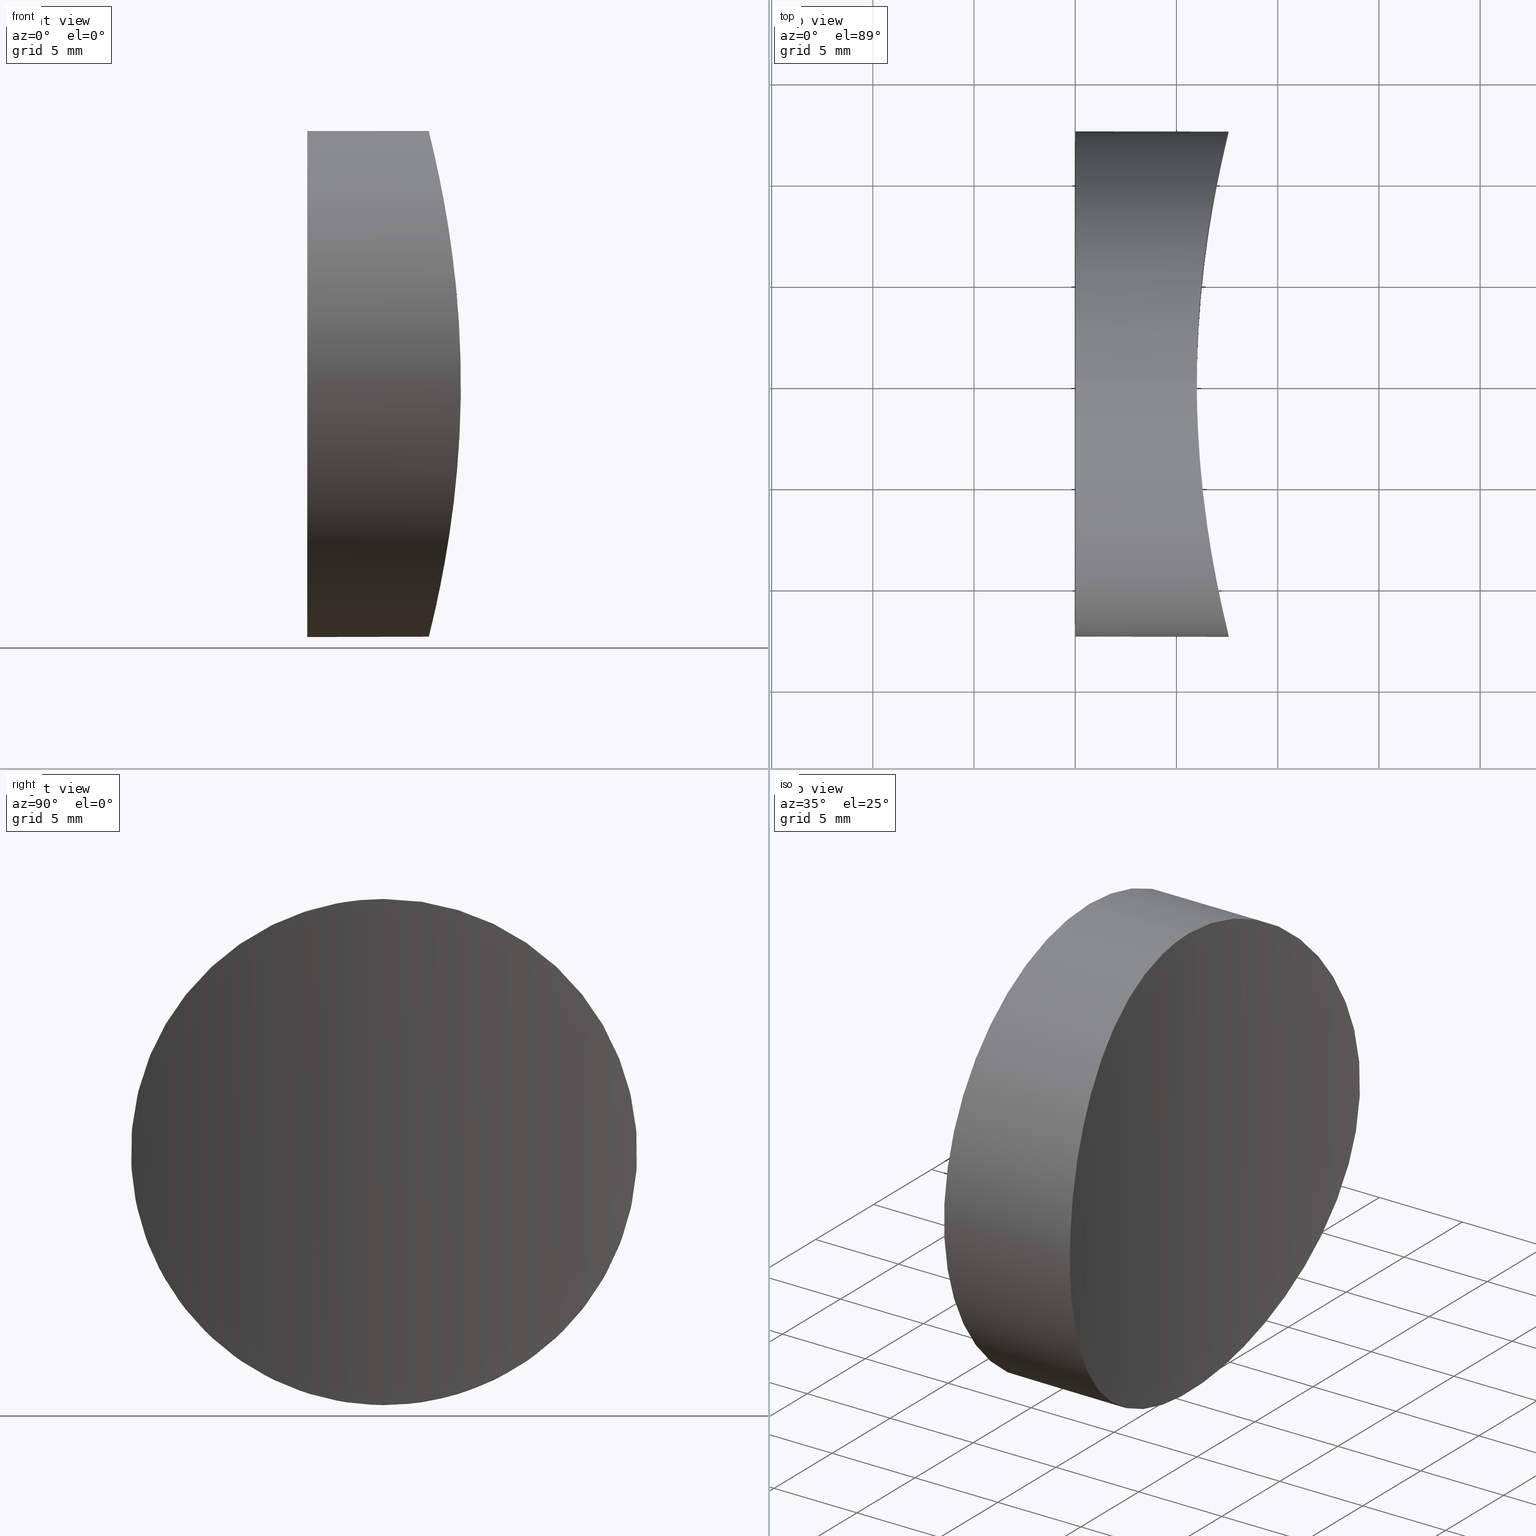
[diagram: canonical four-view strip — front | top / right | iso, engineering-drawing reading convention]
A machine part, canonical four-view strip (front | top / right | iso — engineering-drawing reading convention). The complete STEP part file that produces these views, byte-faithful:
ISO-10303-21;
HEADER;
FILE_DESCRIPTION (( 'STEP AP203' ),
    '1' );
FILE_NAME ('280008.STEP',
    '2022-07-05T09:58:47',
    ( '' ),
    ( '' ),
    'SwSTEP 2.0',
    'SolidWorks 2020',
    '' );
FILE_SCHEMA (( 'CONFIG_CONTROL_DESIGN' ));
ENDSEC;

DATA;
#1 = CARTESIAN_POINT ( 'NONE',  ( 6.079946777061936203, -2.854977740523757301, 12.17652724102993567 ) ) ;
#2 = PERSON_AND_ORGANIZATION ( #167, #139 ) ;
#3 = CARTESIAN_POINT ( 'NONE',  ( 6.161091045138295641, 4.029741608431925748, 11.83977773372679465 ) ) ;
#4 = DATE_TIME_ROLE ( 'classification_date' ) ;
#5 = CC_DESIGN_DATE_AND_TIME_ASSIGNMENT ( #165, #4, ( #186 ) ) ;
#6 = DIRECTION ( 'NONE',  ( 1.000000000000000000, 0.000000000000000000, 0.000000000000000000 ) ) ;
#7 = PERSON_AND_ORGANIZATION ( #167, #139 ) ;
#8 = CARTESIAN_POINT ( 'NONE',  ( 7.186042843819639536, 10.82758093107204544, 6.259370238709979439 ) ) ;
#9 = CARTESIAN_POINT ( 'NONE',  ( 7.587574092879447285, 12.49948071211161960, 0.8267259294094936317 ) ) ;
#10 = LOCAL_TIME ( 17, 58, 47.00000000000000000, #161 ) ;
#11 = CARTESIAN_POINT ( 'NONE',  ( 6.305736556333572551, -5.532896079705575509, -11.21630121569424610 ) ) ;
#12 = APPLICATION_CONTEXT ( 'configuration controlled 3d designs of mechanical parts and assemblies' ) ;
#13 = CARTESIAN_POINT ( 'NONE',  ( 7.587819625756414332, -12.50043165702883741, 0.8180508003151732987 ) ) ;
#14 = CARTESIAN_POINT ( 'NONE',  ( 7.387537047072225249, -11.69849908077583045, -4.423190251143132912 ) ) ;
#15 = CARTESIAN_POINT ( 'NONE',  ( 6.839604805064634974, 9.129185757555623226, -8.548425080368714291 ) ) ;
#16 = CARTESIAN_POINT ( 'NONE',  ( 7.582240441760501604, -12.47887570085656783, -0.8345090582901608656 ) ) ;
#17 = PERSON_AND_ORGANIZATION ( #167, #139 ) ;
#18 = CARTESIAN_POINT ( 'NONE',  ( 0.000000000000000000, 0.000000000000000000, -12.50000000000000000 ) ) ;
#19 = PLANE ( 'NONE',  #71 ) ;
#20 = EDGE_CURVE ( 'NONE', #225, #225, #53, .T. ) ;
#21 = APPROVAL_ROLE ( '' ) ;
#22 = CARTESIAN_POINT ( 'NONE',  ( 10.00000000000000000, 0.000000000000000000, 0.000000000000000000 ) ) ;
#23 = APPROVAL_PERSON_ORGANIZATION ( #216, #195, #94 ) ;
#24 = PERSON_AND_ORGANIZATION ( #167, #139 ) ;
#25 = EDGE_LOOP ( 'NONE', ( #96 ) ) ;
#26 = ORIENTED_EDGE ( 'NONE', *, *, #20, .T. ) ;
#27 = CARTESIAN_POINT ( 'NONE',  ( 6.265913156506872639, -5.163687000787597015, -11.39089312129080334 ) ) ;
#28 = AXIS2_PLACEMENT_3D ( 'NONE', #56, #192, #38 ) ;
#29 = CARTESIAN_POINT ( 'NONE',  ( 6.005100018772039583, 0.8235847107171863080, -12.47964648489684159 ) ) ;
#30 = CARTESIAN_POINT ( 'NONE',  ( 6.307152972755488918, 5.545641650615057650, -11.21003846460155096 ) ) ;
#31 = PRODUCT ( '280008', '280008', '', ( #36 ) ) ;
#32 = CARTESIAN_POINT ( 'NONE',  ( 6.534175713605126390, -7.297294148111635792, 10.15714168463132516 ) ) ;
#33 = AXIS2_PLACEMENT_3D ( 'NONE', #22, #215, #127 ) ;
#34 = CARTESIAN_POINT ( 'NONE',  ( 6.157273637023417123, -4.034211087475103596, -11.85915591738234554 ) ) ;
#35 = FACE_OUTER_BOUND ( 'NONE', #219, .T. ) ;
#36 = MECHANICAL_CONTEXT ( 'NONE', #44, 'mechanical' ) ;
#37 = CC_DESIGN_APPROVAL ( #90, ( #177 ) ) ;
#38 = DIRECTION ( 'NONE',  ( 1.000000000000000000, 0.000000000000000000, 0.000000000000000000 ) ) ;
#39 = CYLINDRICAL_SURFACE ( 'NONE', #33, 12.50000000000000000 ) ;
#40 = SHAPE_DEFINITION_REPRESENTATION ( #147, #222 ) ;
#41 = UNCERTAINTY_MEASURE_WITH_UNIT (LENGTH_MEASURE( 1.000000000000000082E-05 ), #125, 'distance_accuracy_value', 'NONE');
#42 = CARTESIAN_POINT ( 'NONE',  ( 6.532835311999781958, 7.288130936574965801, 10.16363825462673098 ) ) ;
#43 = CALENDAR_DATE ( 2022, 5, 7 ) ;
#45 = CARTESIAN_POINT ( 'NONE',  ( 6.194299334846008698, 4.420004972765438467, 11.69962345129866854 ) ) ;
#44 = APPLICATION_CONTEXT ( 'configuration controlled 3d designs of mechanical parts and assemblies' ) ;
#46 = CARTESIAN_POINT ( 'NONE',  ( 6.303643344953151484, 5.554204356984177693, 11.22814968757779219 ) ) ;
#47 = CARTESIAN_POINT ( 'NONE',  ( 7.566654253665491936, 12.41928640651521576, 1.639928603449063216 ) ) ;
#48 = CARTESIAN_POINT ( 'NONE',  ( 6.891622903190479654, -9.404082368777242351, 8.244961935644763429 ) ) ;
#49 = CARTESIAN_POINT ( 'NONE',  ( 6.682804053279611800, -8.255755907675823124, -9.421080396013119085 ) ) ;
#50 = CARTESIAN_POINT ( 'NONE',  ( 6.390626315220874432, -6.275598733998793755, 10.84153941434476565 ) ) ;
#51 = CC_DESIGN_PERSON_AND_ORGANIZATION_ASSIGNMENT ( #24, #181, ( #75 ) ) ;
#52 = CARTESIAN_POINT ( 'NONE',  ( 7.186673926548846403, -10.83848137812318058, -6.279902066514462255 ) ) ;
#53 = CIRCLE ( 'NONE', #140, 12.50000000000000000 ) ;
#54 = CARTESIAN_POINT ( 'NONE',  ( 6.890422140341053492, -9.397849109412424795, -8.252158447667394370 ) ) ;
#55 = CLOSED_SHELL ( 'NONE', ( #128, #190, #107 ) ) ;
#56 = CARTESIAN_POINT ( 'NONE',  ( 0.000000000000000000, 0.000000000000000000, 0.000000000000000000 ) ) ;
#57 = CARTESIAN_POINT ( 'NONE',  ( 55.99999999999999289, 0.000000000000000000, -12.50000000000000000 ) ) ;
#58 = PERSON_AND_ORGANIZATION_ROLE ( 'creator' ) ;
#59 = APPROVAL_STATUS ( 'not_yet_approved' ) ;
#60 = EDGE_LOOP ( 'NONE', ( #80 ) ) ;
#61 = CARTESIAN_POINT ( 'NONE',  ( 6.020605476757367569, 1.644172766396203356, 12.41828766070498524 ) ) ;
#62 = PERSON_AND_ORGANIZATION_ROLE ( 'classification_officer' ) ;
#63 = DIRECTION ( 'NONE',  ( 0.000000000000000000, 0.000000000000000000, -1.000000000000000000 ) ) ;
#64 = EDGE_CURVE ( 'NONE', #113, #113, #212, .T. ) ;
#65 = PERSON_AND_ORGANIZATION ( #167, #139 ) ;
#66 = CARTESIAN_POINT ( 'NONE',  ( 7.480053143783346847, 12.07600576264278658, 3.253931233787182187 ) ) ;
#67 = CARTESIAN_POINT ( 'NONE',  ( 6.993880496308586103, 9.930680218612506494, 7.635849185167876918 ) ) ;
#68 = CARTESIAN_POINT ( 'NONE',  ( 7.426165505111820941, 11.86116257939136709, -4.029576029921420499 ) ) ;
#69 = CC_DESIGN_DATE_AND_TIME_ASSIGNMENT ( #77, #97, ( #177 ) ) ;
#70 = CARTESIAN_POINT ( 'NONE',  ( 6.685571399684350880, -8.257648748514874626, 9.392943772260853308 ) ) ;
#71 = AXIS2_PLACEMENT_3D ( 'NONE', #146, #92, #175 ) ;
#72 = CARTESIAN_POINT ( 'NONE',  ( 6.437762412349707475, -6.610746524278337866, -10.61671459154143093 ) ) ;
#73 = CARTESIAN_POINT ( 'NONE',  ( 7.185683537567477686, 10.82597122978654625, -6.262221030724949067 ) ) ;
#74 = CARTESIAN_POINT ( 'NONE',  ( 7.272887721713696685, 11.21194335438585732, -5.541605500562336140 ) ) ;
#75 = PRODUCT_DEFINITION_FORMATION_WITH_SPECIFIED_SOURCE ( '�κ�', '', #31, .NOT_KNOWN. ) ;
#76 = DATE_AND_TIME ( #228, #10 ) ;
#77 = DATE_AND_TIME ( #160, #169 ) ;
#78 = COORDINATED_UNIVERSAL_TIME_OFFSET ( 8, 0, .AHEAD. ) ;
#79 = CARTESIAN_POINT ( 'NONE',  ( 6.736217294784413667, 8.553637334125355096, 9.124145734398901197 ) ) ;
#80 = ORIENTED_EDGE ( 'NONE', *, *, #64, .T. ) ;
#81 =( GEOMETRIC_REPRESENTATION_CONTEXT ( 3 ) GLOBAL_UNCERTAINTY_ASSIGNED_CONTEXT ( ( #41 ) ) GLOBAL_UNIT_ASSIGNED_CONTEXT ( ( #125, #210, #91 ) ) REPRESENTATION_CONTEXT ( 'NONE', 'WORKASPACE' ) );
#82 = CALENDAR_DATE ( 2022, 5, 7 ) ;
#83 = CARTESIAN_POINT ( 'NONE',  ( 7.546217856674247493, 12.33846919857784208, -2.044443707445026348 ) ) ;
#84 = CARTESIAN_POINT ( 'NONE',  ( 7.480182015703367604, -12.07652015088924990, -3.251920623330047722 ) ) ;
#85 = CARTESIAN_POINT ( 'NONE',  ( 6.840034300545005941, -9.131405715681983892, 8.545872716771263811 ) ) ;
#86 = CARTESIAN_POINT ( 'NONE',  ( 7.566857184471438735, -12.42005302500203001, 1.631649901699227634 ) ) ;
#87 = CARTESIAN_POINT ( 'NONE',  ( 6.019873447586347126, -1.627421349341951373, -12.42125653720139589 ) ) ;
#88 = CARTESIAN_POINT ( 'NONE',  ( 7.505167992045942427, -12.17612848804832382, -2.856274480234908708 ) ) ;
#89 = FACE_OUTER_BOUND ( 'NONE', #25, .T. ) ;
#90 = APPROVAL ( #158, 'δָ��' ) ;
#91 =( NAMED_UNIT ( * ) SI_UNIT ( $, .STERADIAN. ) SOLID_ANGLE_UNIT ( ) );
#92 = DIRECTION ( 'NONE',  ( 1.000000000000000000, 0.000000000000000000, 0.000000000000000000 ) ) ;
#93 = CARTESIAN_POINT ( 'NONE',  ( 6.020615312958388365, -1.646679393241170075, 12.41826482152781885 ) ) ;
#94 = APPROVAL_ROLE ( '' ) ;
#95 = CARTESIAN_POINT ( 'NONE',  ( 5.999999999999976907, 0.8293366101144191704, 12.50000000000000178 ) ) ;
#96 = ORIENTED_EDGE ( 'NONE', *, *, #64, .F. ) ;
#97 = DATE_TIME_ROLE ( 'creation_date' ) ;
#98 = CARTESIAN_POINT ( 'NONE',  ( 7.313555479837529738, 11.38665288413018040, 5.172968375463545598 ) ) ;
#99 = COORDINATED_UNIVERSAL_TIME_OFFSET ( 8, 0, .AHEAD. ) ;
#100 = CARTESIAN_POINT ( 'NONE',  ( 6.582883460492674921, 7.619143983639335538, 9.917986195790216897 ) ) ;
#101 = DATE_AND_TIME ( #82, #197 ) ;
#102 = ORIENTED_EDGE ( 'NONE', *, *, #20, .F. ) ;
#103 = CARTESIAN_POINT ( 'NONE',  ( 7.043609333828007024, 10.16489498012156822, -7.286279739197849104 ) ) ;
#104 = LOCAL_TIME ( 17, 58, 47.00000000000000000, #78 ) ;
#105 = CARTESIAN_POINT ( 'NONE',  ( 6.992780797638283197, -9.917795697071868588, -7.619384190328960749 ) ) ;
#106 = CARTESIAN_POINT ( 'NONE',  ( 6.099250957845141485, -3.252198560275754602, -12.09790555161523429 ) ) ;
#107 = ADVANCED_FACE ( 'NONE', ( #89 ), #193, .F. ) ;
#108 = CARTESIAN_POINT ( 'NONE',  ( 7.189186427808258451, -10.84993757020427196, 6.261057857521440617 ) ) ;
#109 = CARTESIAN_POINT ( 'NONE',  ( 7.274957686200933082, -11.22390270312588534, -5.563450284998139317 ) ) ;
#110 = APPLICATION_PROTOCOL_DEFINITION ( 'international standard', 'config_control_design', 1994, #44 ) ;
#111 = CARTESIAN_POINT ( 'NONE',  ( 6.104593988542463379, -3.256504468693372178, 12.07539697410158475 ) ) ;
#112 = APPROVAL_PERSON_ORGANIZATION ( #17, #90, #21 ) ;
#113 = VERTEX_POINT ( 'NONE', #196 ) ;
#114 = FACE_OUTER_BOUND ( 'NONE', #132, .T. ) ;
#115 = CALENDAR_DATE ( 2022, 5, 7 ) ;
#116 = CARTESIAN_POINT ( 'NONE',  ( 0.000000000000000000, 0.000000000000000000, 0.000000000000000000 ) ) ;
#117 = COORDINATED_UNIVERSAL_TIME_OFFSET ( 8, 0, .AHEAD. ) ;
#118 = CARTESIAN_POINT ( 'NONE',  ( 7.421454888905754999, -11.83807548013994548, -4.034513058819213072 ) ) ;
#119 = CARTESIAN_POINT ( 'NONE',  ( 6.000043523848350269, 0.4141118134099563419, -12.49982590459195819 ) ) ;
#120 = CARTESIAN_POINT ( 'NONE',  ( 6.304212106178434638, -5.558767228273519656, 11.22560698622802278 ) ) ;
#121 = CARTESIAN_POINT ( 'NONE',  ( 6.737009812873353987, -8.558188811836586751, 9.119863765243435338 ) ) ;
#122 = APPROVAL ( #59, 'δָ��' ) ;
#123 = CARTESIAN_POINT ( 'NONE',  ( 7.042704299791986422, -10.16053974730886367, -7.292351759246850307 ) ) ;
#124 = DIRECTION ( 'NONE',  ( -0.000000000000000000, -0.000000000000000000, 1.000000000000000000 ) ) ;
#125 =( LENGTH_UNIT ( ) NAMED_UNIT ( * ) SI_UNIT ( .MILLI., .METRE. ) );
#126 = COORDINATED_UNIVERSAL_TIME_OFFSET ( 8, 0, .AHEAD. ) ;
#127 = DIRECTION ( 'NONE',  ( 0.000000000000000000, 0.000000000000000000, 1.000000000000000000 ) ) ;
#128 = ADVANCED_FACE ( 'NONE', ( #227, #35 ), #39, .T. ) ;
#129 = PERSON_AND_ORGANIZATION_ROLE ( 'design_owner' ) ;
#130 = CARTESIAN_POINT ( 'NONE',  ( 7.139433422667287310, 10.61600552682815568, 6.612040324294527593 ) ) ;
#131 = PERSON_AND_ORGANIZATION_ROLE ( 'creator' ) ;
#132 = EDGE_LOOP ( 'NONE', ( #102 ) ) ;
#133 = DATE_AND_TIME ( #43, #104 ) ;
#134 = CARTESIAN_POINT ( 'NONE',  ( 7.505499503868519717, 12.17745192511405961, 2.851170773454629437 ) ) ;
#135 = CC_DESIGN_SECURITY_CLASSIFICATION ( #186, ( #75 ) ) ;
#136 = CARTESIAN_POINT ( 'NONE',  ( 7.582647205622541797, 12.48045290285075559, -0.8123653850534494625 ) ) ;
#137 = CARTESIAN_POINT ( 'NONE',  ( 7.561253574387988508, -12.39716193780578202, -1.652004846729108856 ) ) ;
#138 = CARTESIAN_POINT ( 'NONE',  ( 6.581414756451399839, 7.633390995928920120, -9.931886804804646474 ) ) ;
#139 = ORGANIZATION ( 'δָ��', 'δָ��', '' ) ;
#140 = AXIS2_PLACEMENT_3D ( 'NONE', #116, #6, #63 ) ;
#141 = CARTESIAN_POINT ( 'NONE',  ( 6.993812786226046185, 9.922854719828210435, -7.612694288586244973 ) ) ;
#142 = CARTESIAN_POINT ( 'NONE',  ( 6.162340162931686294, -4.045247133053861077, 11.83452614468704311 ) ) ;
#143 = CARTESIAN_POINT ( 'NONE',  ( 7.277167575568991964, -11.23338405625964143, 5.543226579450369229 ) ) ;
#144 = AXIS2_PLACEMENT_3D ( 'NONE', #57, #124, #178 ) ;
#145 = PRODUCT_RELATED_PRODUCT_CATEGORY ( 'detail', '', ( #31 ) ) ;
#146 = CARTESIAN_POINT ( 'NONE',  ( 0.000000000000000000, 0.000000000000000000, 0.000000000000000000 ) ) ;
#147 = PRODUCT_DEFINITION_SHAPE ( 'NONE', 'NONE',  #177 ) ;
#148 = APPROVAL_STATUS ( 'not_yet_approved' ) ;
#149 = CARTESIAN_POINT ( 'NONE',  ( 7.273006974817552539, 11.21245168498610489, 5.540501043769901379 ) ) ;
#150 = CARTESIAN_POINT ( 'NONE',  ( 5.999999999999977796, 7.589415207398531038E-16, 12.50000000000000355 ) ) ;
#151 = MANIFOLD_SOLID_BREP ( '�г�-����1', #55 ) ;
#152 = CARTESIAN_POINT ( 'NONE',  ( 7.387636556025475087, 11.69888303683122643, 4.421719281881046903 ) ) ;
#153 = CARTESIAN_POINT ( 'NONE',  ( 6.891951690821399801, 9.405797270070179295, -8.243005388608629858 ) ) ;
#154 = CARTESIAN_POINT ( 'NONE',  ( 6.040629464330187659, 2.055146499738520927, -12.33672660645350305 ) ) ;
#155 = CARTESIAN_POINT ( 'NONE',  ( 6.993492489709584703, -9.921274511122165407, 7.614753744799346080 ) ) ;
#156 = CARTESIAN_POINT ( 'NONE',  ( 6.100039157082803420, 3.262396925311849216, -12.09465039977496303 ) ) ;
#157 = CARTESIAN_POINT ( 'NONE',  ( 7.425618115602480529, -11.85886762567691299, 4.035286471023519006 ) ) ;
#158 = APPROVAL_STATUS ( 'not_yet_approved' ) ;
#159 = CARTESIAN_POINT ( 'NONE',  ( 5.999999999999977796, 7.589415207398531038E-16, 12.50000000000000355 ) ) ;
#160 = CALENDAR_DATE ( 2022, 5, 7 ) ;
#161 = COORDINATED_UNIVERSAL_TIME_OFFSET ( 8, 0, .AHEAD. ) ;
#162 = CC_DESIGN_PERSON_AND_ORGANIZATION_ASSIGNMENT ( #174, #129, ( #31 ) ) ;
#163 = CARTESIAN_POINT ( 'NONE',  ( 5.999999999999979572, -0.8293366101144146185, 12.50000000000000355 ) ) ;
#164 = CARTESIAN_POINT ( 'NONE',  ( 7.421170797734117031, 11.83691308773319584, 4.038003492698865493 ) ) ;
#165 = DATE_AND_TIME ( #115, #206 ) ;
#166 = CARTESIAN_POINT ( 'NONE',  ( 6.890862673855239429, 9.414490074540021070, 8.262951333607043480 ) ) ;
#167 = PERSON ( 'δָ��', 'δָ��', 'δָ��', ('δָ��'), ('δָ��'), ('δָ��') ) ;
#168 = CARTESIAN_POINT ( 'NONE',  ( 6.157859234404973847, 4.041699135237720952, -11.85672567249747900 ) ) ;
#169 = LOCAL_TIME ( 17, 58, 47.00000000000000000, #126 ) ;
#170 = CARTESIAN_POINT ( 'NONE',  ( 7.587651777139506670, -12.49978158203509970, -0.4188795559613978092 ) ) ;
#171 = CARTESIAN_POINT ( 'NONE',  ( 7.486212201423399826, -12.10121620201574011, 3.237370071160983187 ) ) ;
#172 = CARTESIAN_POINT ( 'NONE',  ( 6.195230758229563151, -4.430323650192627305, 11.69565169972963226 ) ) ;
#173 = CARTESIAN_POINT ( 'NONE',  ( 7.545703338198555876, -12.33644889939095535, -2.056316468012298504 ) ) ;
#174 = PERSON_AND_ORGANIZATION ( #167, #139 ) ;
#175 = DIRECTION ( 'NONE',  ( 0.000000000000000000, 0.000000000000000000, -1.000000000000000000 ) ) ;
#176 = APPROVAL_DATE_TIME ( #76, #90 ) ;
#177 = PRODUCT_DEFINITION ( 'δ֪', '', #75, #209 ) ;
#178 = DIRECTION ( 'NONE',  ( 1.000000000000000000, 0.000000000000000000, 0.000000000000000000 ) ) ;
#179 = APPROVAL_ROLE ( '' ) ;
#180 = CARTESIAN_POINT ( 'NONE',  ( 6.684639176428601282, 8.252148142370892003, 9.397864452080449738 ) ) ;
#181 = PERSON_AND_ORGANIZATION_ROLE ( 'design_supplier' ) ;
#182 = CARTESIAN_POINT ( 'NONE',  ( 6.390075651894231434, 6.270912648793841804, 10.84394923584066461 ) ) ;
#183 = APPROVAL_DATE_TIME ( #101, #122 ) ;
#184 = CARTESIAN_POINT ( 'NONE',  ( 5.999913791463685087, -0.8123570540043763000, -12.50034483417416453 ) ) ;
#185 = CARTESIAN_POINT ( 'NONE',  ( 6.393397947848990626, 6.270424214491971071, -10.82131617989214512 ) ) ;
#186 = SECURITY_CLASSIFICATION ( '', '', #218 ) ;
#187 = CC_DESIGN_PERSON_AND_ORGANIZATION_ASSIGNMENT ( #65, #62, ( #186 ) ) ;
#188 = CARTESIAN_POINT ( 'NONE',  ( 7.139543577572755595, 10.61645304269938528, -6.611042821439353290 ) ) ;
#189 = CARTESIAN_POINT ( 'NONE',  ( 6.025346065871789669, 1.643861330173123303, -12.39828972442920119 ) ) ;
#190 = ADVANCED_FACE ( 'NONE', ( #114 ), #19, .F. ) ;
#191 = CARTESIAN_POINT ( 'NONE',  ( 6.439039493289830496, 6.620234138228664023, -10.61073787985911743 ) ) ;
#192 = DIRECTION ( 'NONE',  ( 0.000000000000000000, 0.000000000000000000, 1.000000000000000000 ) ) ;
#193 = CYLINDRICAL_SURFACE ( 'NONE', #144, 50.00000000000001421 ) ;
#194 = APPROVAL_PERSON_ORGANIZATION ( #7, #122, #179 ) ;
#195 = APPROVAL ( #148, 'δָ��' ) ;
#196 = CARTESIAN_POINT ( 'NONE',  ( 5.999999999999977796, 0.000000000000000000, 12.50000000000000000 ) ) ;
#197 = LOCAL_TIME ( 17, 58, 47.00000000000000000, #117 ) ;
#198 = CARTESIAN_POINT ( 'NONE',  ( 7.561794044490353528, 12.39927256282063439, -1.636973454883255741 ) ) ;
#199 = CARTESIAN_POINT ( 'NONE',  ( 6.103705024896003195, 3.242747446091564623, 12.07906218278748689 ) ) ;
#200 = APPROVAL_DATE_TIME ( #133, #195 ) ;
#201 = CARTESIAN_POINT ( 'NONE',  ( 6.079435908690593138, 2.845711871288983730, 12.17861720693482575 ) ) ;
#202 = CARTESIAN_POINT ( 'NONE',  ( 7.485450251414135003, 12.09817206525401545, -3.248772326305731095 ) ) ;
#203 = CARTESIAN_POINT ( 'NONE',  ( 7.044033219996579831, -10.16698005060256271, 7.283578402391908568 ) ) ;
#204 = CC_DESIGN_PERSON_AND_ORGANIZATION_ASSIGNMENT ( #2, #131, ( #75 ) ) ;
#205 = CARTESIAN_POINT ( 'NONE',  ( 6.584284730076474190, -7.628152816463905417, 9.910975742649004161 ) ) ;
#206 = LOCAL_TIME ( 17, 58, 47.00000000000000000, #99 ) ;
#207 = CARTESIAN_POINT ( 'NONE',  ( 6.391648501431714813, -6.256534170916088655, -10.82931817605175162 ) ) ;
#208 = CARTESIAN_POINT ( 'NONE',  ( 6.683624794758618037, 8.260816538851905477, -9.416970102637261419 ) ) ;
#209 = DESIGN_CONTEXT ( 'detailed design', #12, 'design' ) ;
#210 =( NAMED_UNIT ( * ) PLANE_ANGLE_UNIT ( ) SI_UNIT ( $, .RADIAN. ) );
#211 = CC_DESIGN_APPROVAL ( #122, ( #75 ) ) ;
#212 = B_SPLINE_CURVE_WITH_KNOTS ( 'NONE', 3,
 ( #150, #95, #61, #201, #199, #3, #45, #46, #182, #42, #100, #180, #79, #166, #67, #130, #8, #149, #98, #152, #164, #66, #134, #47, #9, #217, #136, #198, #83, #202, #68, #224, #74, #73, #188, #103, #141, #153, #15, #208, #138, #191, #185, #30, #220, #168, #156, #154, #189, #29, #119, #184, #87, #106, #34, #27, #11, #207, #72, #223, #49, #221, #54, #105, #123, #52, #109, #14, #118, #84, #88, #173, #137, #16, #170, #13, #86, #171, #157, #143, #108, #203, #155, #48, #85, #121, #70, #205, #32, #50, #120, #172, #142, #111, #1, #93, #163, #159 ),
 .UNSPECIFIED., .T., .F.,
 ( 4, 2, 2, 2, 2, 2, 2, 2, 2, 2, 2, 2, 2, 2, 2, 2, 2, 2, 2, 2, 2, 2, 2, 2, 2, 2, 2, 2, 2, 2, 2, 2, 2, 2, 2, 2, 2, 2, 2, 2, 2, 2, 2, 2, 2, 2, 2, 2, 4 ),
 ( 0.000000000000000000, 0.002451972902059416926, 0.003677959353089124955, 0.004903945804118833851, 0.007355918706178249909, 0.008581905157207960974, 0.009807891608237669437, 0.01225986451029709330, 0.01348585096132680523, 0.01471183741235651717, 0.01593782386338622736, 0.01716381031441593583, 0.01961578321647535275, 0.02084176966750505774, 0.02206775611853476968, 0.02451972902059418660, 0.02574571547162389507, 0.02697170192265360006, 0.02819768837368331199, 0.02942367482471301698, 0.03187564772677243391, 0.03310163417780213890, 0.03432762062883185084, 0.03677959353089126082, 0.03800557998192097275, 0.03923156643295067775, 0.04168353933501008080, 0.04413551223706950466, 0.04536149868809920965, 0.04658748513912891465, 0.04903945804118832463, 0.05026544449221803657, 0.05149143094324774156, 0.05394340384530715848, 0.05516939029633686348, 0.05639537674736658235, 0.05762136319839628734, 0.05884734964942599234, 0.06129932255148539538, 0.06375129545354481231, 0.06620326835560422229, 0.06742925480663392035, 0.06865524125766361840, 0.06988122770869331646, 0.07110721415972301451, 0.07355918706178242450, 0.07478517351281212255, 0.07601115996384182061, 0.07846313286590123059 ),
 .UNSPECIFIED. ) ;
#213 = APPLICATION_PROTOCOL_DEFINITION ( 'international standard', 'config_control_design', 1994, #12 ) ;
#214 = PERSON_AND_ORGANIZATION ( #167, #139 ) ;
#215 = DIRECTION ( 'NONE',  ( -1.000000000000000000, -0.000000000000000000, -0.000000000000000000 ) ) ;
#216 = PERSON_AND_ORGANIZATION ( #167, #139 ) ;
#217 = CARTESIAN_POINT ( 'NONE',  ( 7.587774247958120277, 12.50025590956267685, -0.4015291448271991470 ) ) ;
#218 = SECURITY_CLASSIFICATION_LEVEL ( 'unclassified' ) ;
#219 = EDGE_LOOP ( 'NONE', ( #26 ) ) ;
#220 = CARTESIAN_POINT ( 'NONE',  ( 6.266898987388819897, 5.173223914418061398, -11.38659620889639079 ) ) ;
#221 = CARTESIAN_POINT ( 'NONE',  ( 6.838062205588328446, -9.120838925887433390, -8.557240363974440100 ) ) ;
#222 = ADVANCED_BREP_SHAPE_REPRESENTATION ( '280008', ( #151, #28 ), #81 ) ;
#223 = CARTESIAN_POINT ( 'NONE',  ( 6.580620362840715387, -7.628523676972813305, -9.935895521586974866 ) ) ;
#224 = CARTESIAN_POINT ( 'NONE',  ( 7.314147725295432778, 11.38920243491752160, -5.167662244708587593 ) ) ;
#225 = VERTEX_POINT ( 'NONE', #18 ) ;
#226 = CC_DESIGN_PERSON_AND_ORGANIZATION_ASSIGNMENT ( #214, #58, ( #177 ) ) ;
#227 = FACE_OUTER_BOUND ( 'NONE', #60, .T. ) ;
#228 = CALENDAR_DATE ( 2022, 5, 7 ) ;
#229 = CC_DESIGN_APPROVAL ( #195, ( #186 ) ) ;
ENDSEC;
END-ISO-10303-21;
